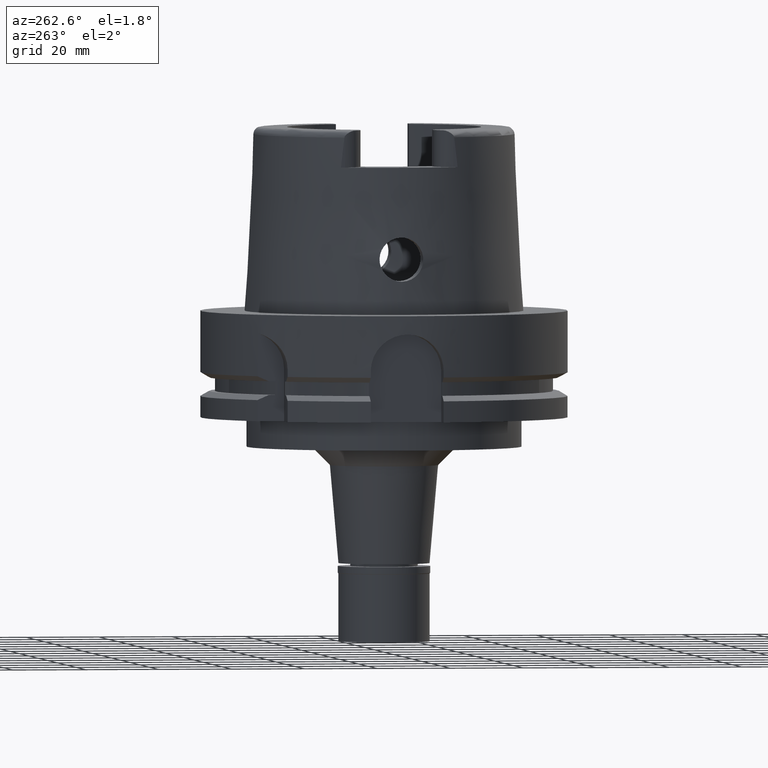
[diagram: clean part render]
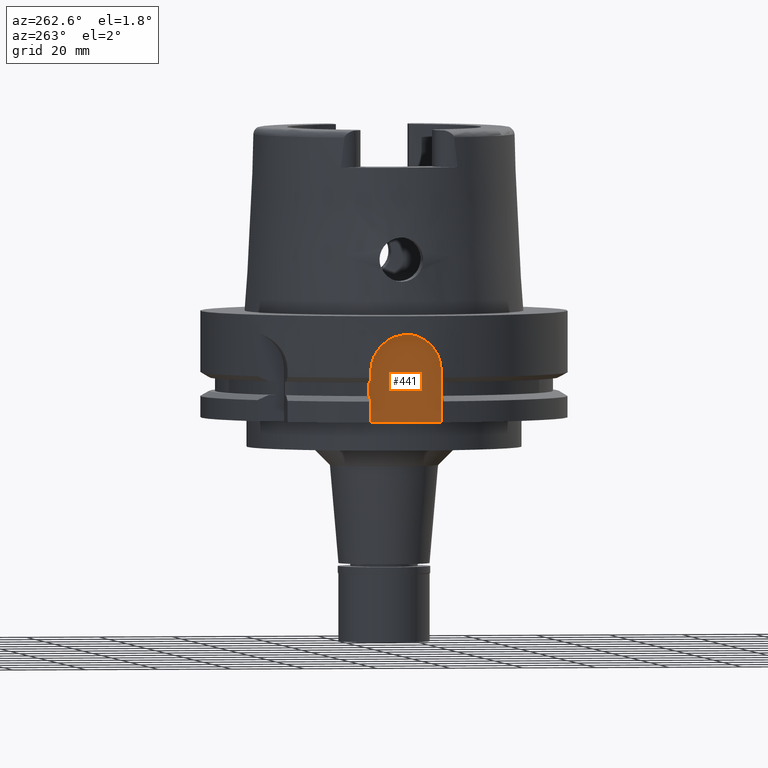
[diagram: same view with one face highlighted and labeled with its STEP entity id]
A machine part, auxiliary view. The second image highlights one B-rep face of the part: STEP entity #441.
In plain terms, the highlighted planar face has unit normal (1, 0, 0).
Its self-contained STEP definition (entity closure, byte-faithful):
#10 = LINE ( 'NONE', #970, #5240 ) ;
#17 = DIRECTION ( 'NONE',  ( 0.0000000000000000000, 0.0000000000000000000, 1.000000000000000000 ) ) ;
#180 = VERTEX_POINT ( 'NONE', #3188 ) ;
#441 = ADVANCED_FACE ( 'NONE', ( #965 ), #2694, .F. ) ;
#535 = DIRECTION ( 'NONE',  ( 0.0000000000000000000, 1.000000000000000000, 0.0000000000000000000 ) ) ;
#777 = VERTEX_POINT ( 'NONE', #5156 ) ;
#965 = FACE_OUTER_BOUND ( 'NONE', #1218, .T. ) ;
#970 = CARTESIAN_POINT ( 'NONE',  ( -44.00000000000000000, 10.00000000000000000, -15.00000000000000000 ) ) ;
#1192 = ORIENTED_EDGE ( 'NONE', *, *, #3614, .F. ) ;
#1218 = EDGE_LOOP ( 'NONE', ( #2919, #1801, #1242, #1192 ) ) ;
#1242 = ORIENTED_EDGE ( 'NONE', *, *, #4361, .T. ) ;
#1272 = VERTEX_POINT ( 'NONE', #4079 ) ;
#1697 = CARTESIAN_POINT ( 'NONE',  ( -44.00000000000000000, -10.00000000000000000, -29.00000000000000000 ) ) ;
#1722 = DIRECTION ( 'NONE',  ( 0.0000000000000000000, 1.000000000000000000, 0.0000000000000000000 ) ) ;
#1801 = ORIENTED_EDGE ( 'NONE', *, *, #3196, .F. ) ;
#1813 = LINE ( 'NONE', #1697, #2026 ) ;
#2026 = VECTOR ( 'NONE', #1722, 1000.000000000000000 ) ;
#2205 = DIRECTION ( 'NONE',  ( 0.0000000000000000000, 0.0000000000000000000, -1.000000000000000000 ) ) ;
#2352 = CARTESIAN_POINT ( 'NONE',  ( -44.00000000000000000, -10.00000000000000000, -29.00000000000000000 ) ) ;
#2423 = CARTESIAN_POINT ( 'NONE',  ( -44.00000000000000000, -10.00000000000000000, -15.00000000000000000 ) ) ;
#2481 = CIRCLE ( 'NONE', #2575, 10.00000000000000000 ) ;
#2558 = CARTESIAN_POINT ( 'NONE',  ( -44.00000000000000000, 0.0000000000000000000, -15.00000000000000000 ) ) ;
#2575 = AXIS2_PLACEMENT_3D ( 'NONE', #2558, #2596, #17 ) ;
#2596 = DIRECTION ( 'NONE',  ( 1.000000000000000000, 0.0000000000000000000, 0.0000000000000000000 ) ) ;
#2694 = PLANE ( 'NONE',  #5434 ) ;
#2731 = VERTEX_POINT ( 'NONE', #2423 ) ;
#2919 = ORIENTED_EDGE ( 'NONE', *, *, #3456, .T. ) ;
#3188 = CARTESIAN_POINT ( 'NONE',  ( -44.00000000000000000, 10.00000000000000000, -15.00000000000000000 ) ) ;
#3196 = EDGE_CURVE ( 'NONE', #180, #2731, #2481, .T. ) ;
#3456 = EDGE_CURVE ( 'NONE', #1272, #2731, #4547, .T. ) ;
#3538 = CARTESIAN_POINT ( 'NONE',  ( -44.00000000000000000, 0.0000000000000000000, 0.0000000000000000000 ) ) ;
#3614 = EDGE_CURVE ( 'NONE', #1272, #777, #1813, .T. ) ;
#3826 = DIRECTION ( 'NONE',  ( 0.0000000000000000000, 0.0000000000000000000, 1.000000000000000000 ) ) ;
#4079 = CARTESIAN_POINT ( 'NONE',  ( -44.00000000000000000, -10.00000000000000000, -29.00000000000000000 ) ) ;
#4361 = EDGE_CURVE ( 'NONE', #180, #777, #10, .T. ) ;
#4448 = DIRECTION ( 'NONE',  ( 1.000000000000000000, 0.0000000000000000000, 0.0000000000000000000 ) ) ;
#4547 = LINE ( 'NONE', #2352, #4688 ) ;
#4688 = VECTOR ( 'NONE', #3826, 1000.000000000000000 ) ;
#5156 = CARTESIAN_POINT ( 'NONE',  ( -44.00000000000000000, 10.00000000000000000, -29.00000000000000000 ) ) ;
#5240 = VECTOR ( 'NONE', #2205, 1000.000000000000000 ) ;
#5434 = AXIS2_PLACEMENT_3D ( 'NONE', #3538, #4448, #535 ) ;